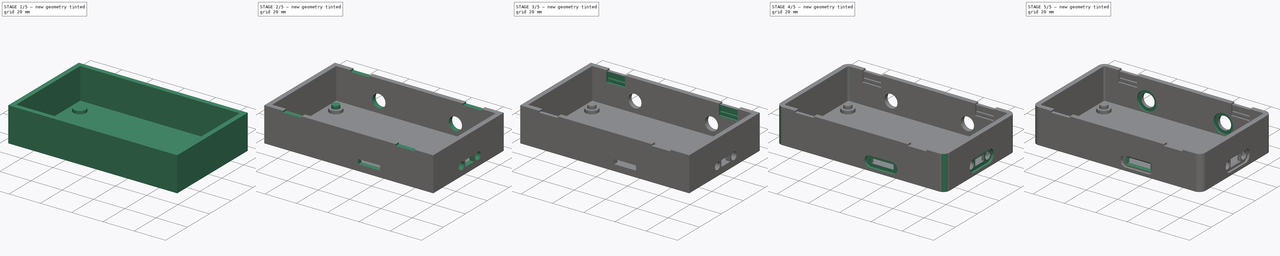
[diagram: build sequence overview — one tinted view per stage of 5, left to right]
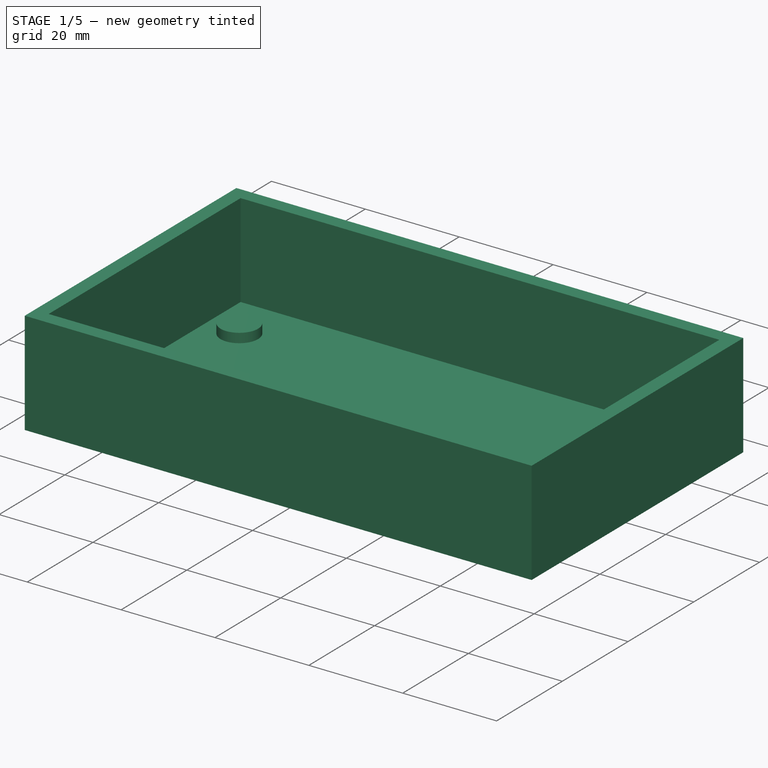
[diagram: stage 1 of 5 — iso view after this stage's code; geometry added in this stage tinted green]
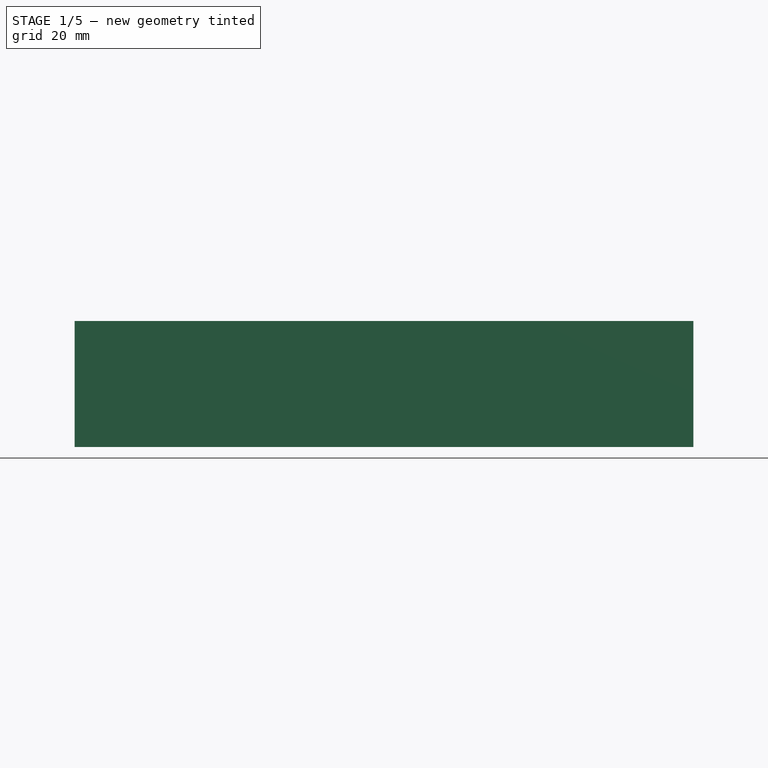
[diagram: stage 1 of 5 — front view after this stage's code; geometry added in this stage tinted green]
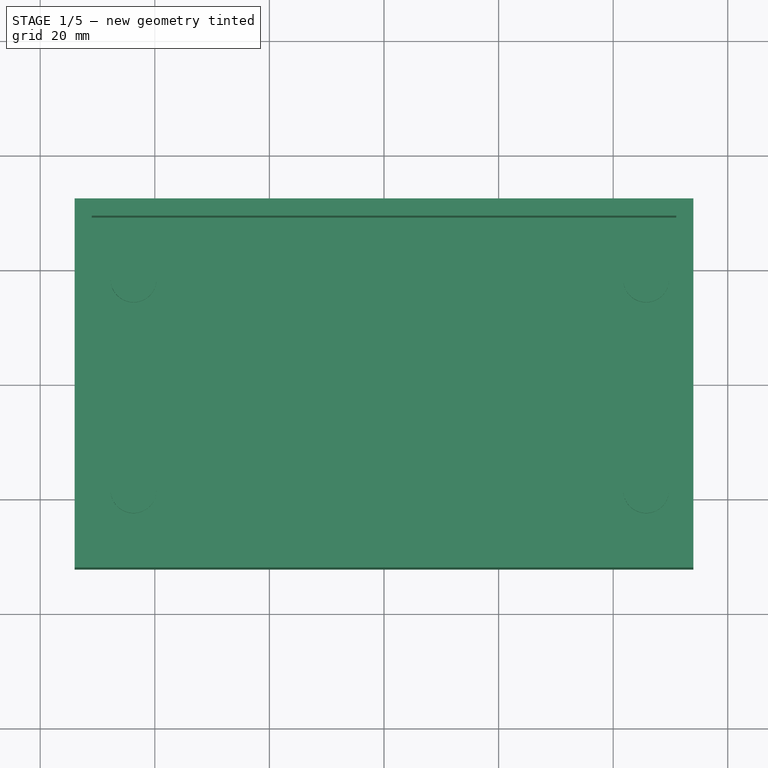
[diagram: stage 1 of 5 — top view after this stage's code; geometry added in this stage tinted green]
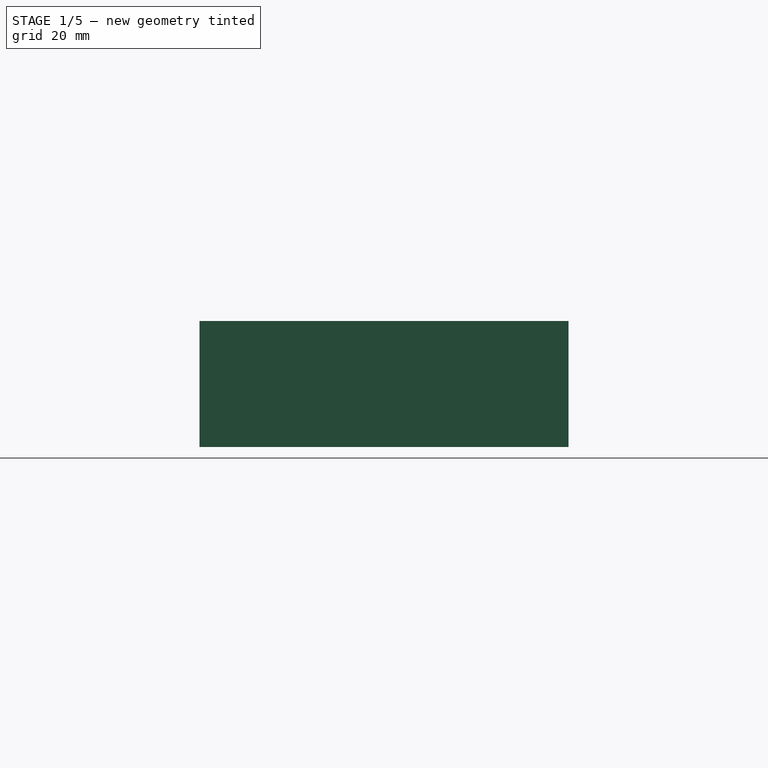
[diagram: stage 1 of 5 — right view after this stage's code; geometry added in this stage tinted green]
FCSTD DOCUMENT  (FreeCAD 0.17R13541 (Git))
Label: Case-Bottom
License: All rights reserved
LicenseURL: http://en.wikipedia.org/wiki/All_rights_reserved
objects: Sketcher::SketchObject×13, PartDesign::Pocket×10, PartDesign::Pad×3, PartDesign::Fillet×2, PartDesign::Chamfer×2, PartDesign::Body×1
note: 44 computed .brp shape members not serialized (recipe doc carries the construction recipe); baked Part::Feature solids carry a one-line shape summary decoded from their .brp

FEATURE [Sketcher::SketchObject] Sketch
  MapMode = 5
  Support = -> [XY_Plane]
  sketch-geometry (8):
    g0: LineSegment StartX=-54 StartY=32.2 StartZ=0 EndX=54 EndY=32.2 EndZ=0
    g1: LineSegment StartX=54 StartY=32.2 StartZ=0 EndX=54 EndY=-32.2 EndZ=0
    g2: LineSegment StartX=54 StartY=-32.2 StartZ=0 EndX=-54 EndY=-32.2 EndZ=0
    g3: LineSegment StartX=-54 StartY=-32.2 StartZ=0 EndX=-54 EndY=32.2 EndZ=0
    g4: LineSegment [constr] StartX=-51 StartY=29.2 StartZ=0 EndX=51 EndY=29.2 EndZ=0
    g5: LineSegment [constr] StartX=51 StartY=29.2 StartZ=0 EndX=51 EndY=-29.2 EndZ=0
    g6: LineSegment [constr] StartX=51 StartY=-29.2 StartZ=0 EndX=-51 EndY=-29.2 EndZ=0
    g7: LineSegment [constr] StartX=-51 StartY=-29.2 StartZ=0 EndX=-51 EndY=29.2 EndZ=0
  constraints (24):
    c: Coincident(g0,g1)
    c: Coincident(g1,g2)
    c: Coincident(g2,g3)
    c: Coincident(g3,g0)
    c: Horizontal(g0)
    c: Horizontal(g2)
    c: Vertical(g1)
    c: Vertical(g3)
    c: Symmetric(g0,g0,g-2)
    c: Symmetric(g0,g1,g-1)
    c: Coincident(g4,g5)
    c: Coincident(g5,g6)
    c: Coincident(g6,g7)
    c: Coincident(g7,g4)
    c: Horizontal(g4)
    c: Horizontal(g6)
    c: Vertical(g5)
    c: Vertical(g7)
    c: Symmetric(g4,g4,g-2)
    c: Symmetric(g4,g5,g-1)
    c: DistanceX(g0,g4) = 3
    c: DistanceY(g4,g0) = 3
    c: Distance(g4) = 102
    c: Distance(g7) = 58.4
FEATURE [PartDesign::Pad] Pad
  Length = 22
  Length2 = 100
  Profile = -> Sketch
  Type = 0
FEATURE [Sketcher::SketchObject] Sketch001
  ExternalGeometry = -> [Pad]
  MapMode = 5
  Placement = pos=(0,0,22) rot=(0,0,1;0rad)
  Support = -> [Pad]
  sketch-geometry (4):
    g0: LineSegment StartX=-51 StartY=29.2 StartZ=0 EndX=51 EndY=29.2 EndZ=0
    g1: LineSegment StartX=51 StartY=29.2 StartZ=0 EndX=51 EndY=-29.2 EndZ=0
    g2: LineSegment StartX=51 StartY=-29.2 StartZ=0 EndX=-51 EndY=-29.2 EndZ=0
    g3: LineSegment StartX=-51 StartY=-29.2 StartZ=0 EndX=-51 EndY=29.2 EndZ=0
  constraints (12):
    c: Coincident(g0,g1)
    c: Coincident(g1,g2)
    c: Coincident(g2,g3)
    c: Coincident(g3,g0)
    c: Horizontal(g0)
    c: Horizontal(g2)
    c: Vertical(g1)
    c: Vertical(g3)
    c: DistanceY(g0,g-3) = 3
    c: Symmetric(g0,g0,g-2)
    c: Symmetric(g0,g1,g-1)
    c: DistanceX(g-3,g0) = 3
FEATURE [PartDesign::Pocket] Pocket
  BaseFeature = -> Pad
  Length = 20
  Length2 = 100
  Profile = -> Sketch001
  Type = 0
FEATURE [Sketcher::SketchObject] Sketch002
  ExternalGeometry = -> [Pocket]
  MapMode = 5
  Placement = pos=(0,0,2) rot=(0,0,1;0rad)
  Support = -> [Pocket]
  sketch-geometry (8):
    g0: LineSegment [constr] StartX=-43.71 StartY=18.4 StartZ=0 EndX=45.75 EndY=18.4 EndZ=0
    g1: LineSegment [constr] StartX=45.75 StartY=18.4 StartZ=0 EndX=45.75 EndY=-18.4 EndZ=0
    g2: LineSegment [constr] StartX=45.75 StartY=-18.4 StartZ=0 EndX=-43.71 EndY=-18.4 EndZ=0
    g3: LineSegment [constr] StartX=-43.71 StartY=-18.4 StartZ=0 EndX=-43.71 EndY=18.4 EndZ=0
    g4: Circle CenterX=-43.71 CenterY=18.4 CenterZ=0 NormalX=0 NormalY=0 NormalZ=1 AngleXU=0 Radius=4
    g5: Circle CenterX=45.75 CenterY=18.4 CenterZ=0 NormalX=0 NormalY=0 NormalZ=1 AngleXU=0 Radius=4
    g6: Circle CenterX=45.75 CenterY=-18.4 CenterZ=0 NormalX=0 NormalY=0 NormalZ=1 AngleXU=0 Radius=4
    g7: Circle CenterX=-43.71 CenterY=-18.4 CenterZ=0 NormalX=0 NormalY=0 NormalZ=1 AngleXU=0 Radius=4
  constraints (20):
    c: Coincident(g0,g1)
    c: Coincident(g1,g2)
    c: Coincident(g2,g3)
    c: Coincident(g3,g0)
    c: Horizontal(g0)
    c: Horizontal(g2)
    c: Vertical(g1)
    c: Vertical(g3)
    c: DistanceX(g-3,g0) = 7.29
    c: DistanceY(g0,g-3) = 10.8
    c: Coincident(g5,g0)
    c: Coincident(g6,g1)
    c: Coincident(g7,g2)
    c: Equal(g4,g5)
    c: Equal(g5,g6)
    c: Equal(g6,g7)
    c: Radius(g4) = 4
    c: Coincident(g4,g0)
    c: DistanceX(g-3,g0) = 96.75
    c: DistanceY(g2,g-3) = 47.6
FEATURE [PartDesign::Pad] Pad001
  BaseFeature = -> Pocket
  Length = 2
  Length2 = 100
  Profile = -> Sketch002
  Type = 0
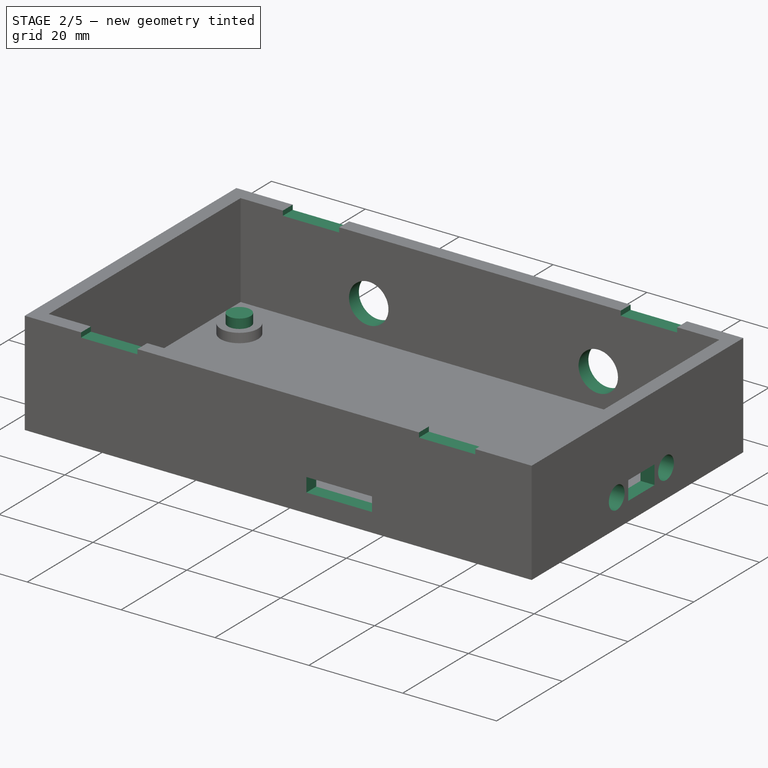
[diagram: stage 2 of 5 — iso view after this stage's code; geometry added in this stage tinted green]
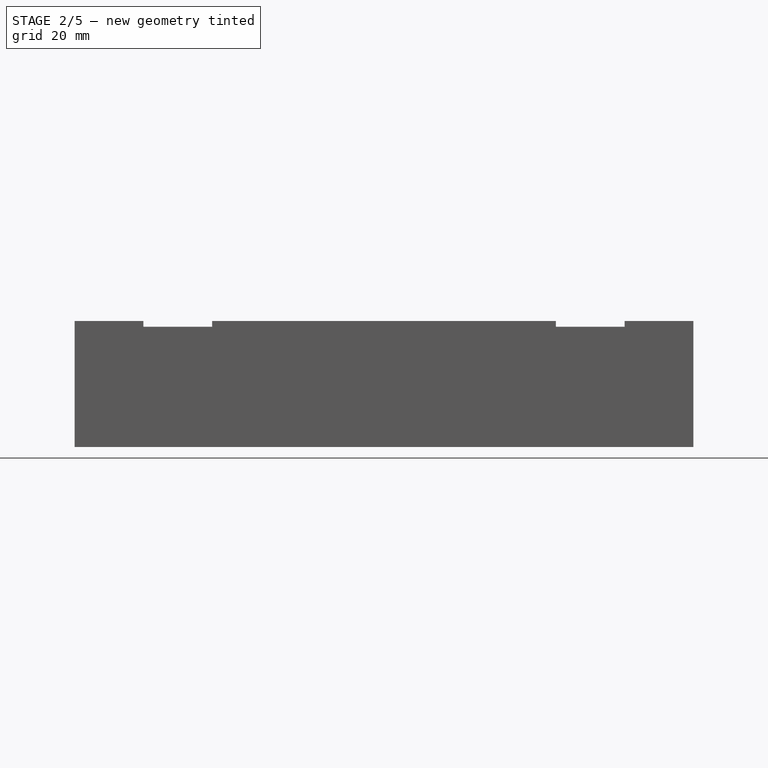
[diagram: stage 2 of 5 — front view after this stage's code; geometry added in this stage tinted green]
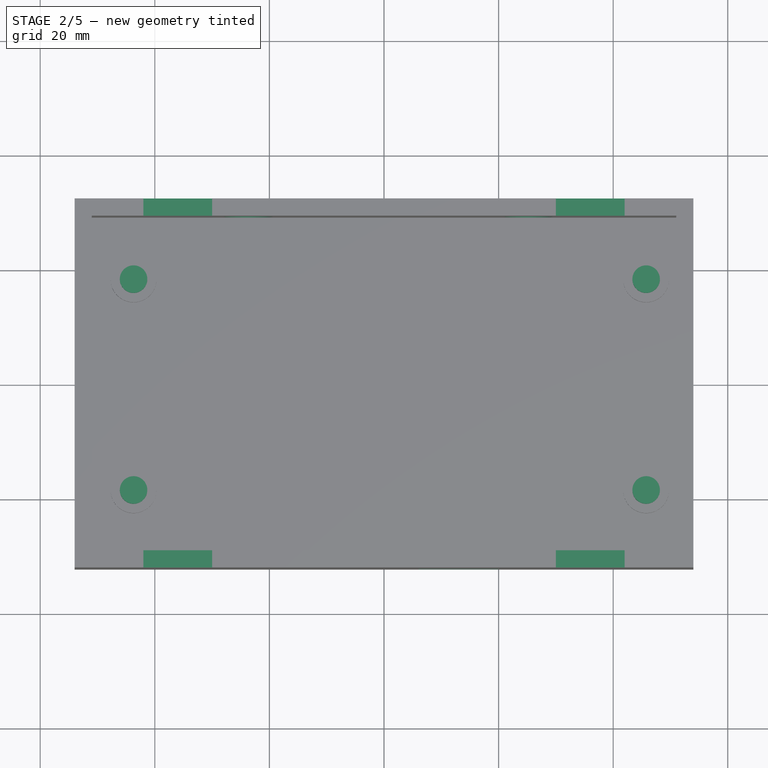
[diagram: stage 2 of 5 — top view after this stage's code; geometry added in this stage tinted green]
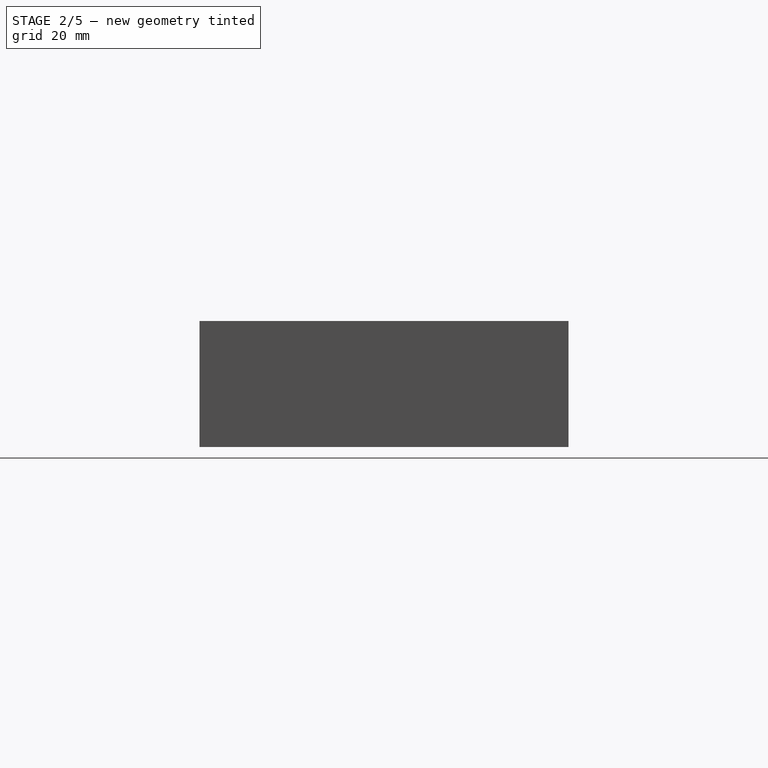
[diagram: stage 2 of 5 — right view after this stage's code; geometry added in this stage tinted green]
FEATURE [Sketcher::SketchObject] Sketch003
  ExternalGeometry = -> [Pad001]
  MapMode = 5
  Placement = pos=(0,0,2) rot=(0,0,1;0rad)
  Support = -> [Pad001]
  sketch-geometry (4):
    g0: Circle CenterX=-43.71 CenterY=18.4 CenterZ=0 NormalX=0 NormalY=0 NormalZ=1 AngleXU=0 Radius=2.4
    g1: Circle CenterX=45.75 CenterY=18.4 CenterZ=0 NormalX=0 NormalY=0 NormalZ=1 AngleXU=0 Radius=2.4
    g2: Circle CenterX=45.75 CenterY=-18.4 CenterZ=0 NormalX=0 NormalY=0 NormalZ=1 AngleXU=0 Radius=2.4
    g3: Circle CenterX=-43.71 CenterY=-18.4 CenterZ=0 NormalX=0 NormalY=0 NormalZ=1 AngleXU=0 Radius=2.4
  constraints (8):
    c: Coincident(g0,g-6)
    c: Coincident(g1,g-7)
    c: Coincident(g3,g-8)
    c: Coincident(g2,g-9)
    c: Equal(g1,g0)
    c: Equal(g0,g3)
    c: Equal(g3,g2)
    c: Radius(g0) = 2.4
FEATURE [PartDesign::Pad] Pad002
  BaseFeature = -> Pad001
  Length = 4
  Length2 = 100
  Profile = -> Sketch003
  Type = 0
FEATURE [Sketcher::SketchObject] Sketch004
  ExternalGeometry = -> [Pad002]
  MapMode = 5
  Placement = pos=(0,32.2,0) rot=(0,0.707107,0.707107;3.14159rad)
  Support = -> [Pad002]
  sketch-geometry (10):
    g0: LineSegment StartX=-42 StartY=21 StartZ=0 EndX=-30 EndY=21 EndZ=0
    g1: LineSegment StartX=-30 StartY=21 StartZ=0 EndX=-30 EndY=22 EndZ=0
    g2: LineSegment StartX=-30 StartY=22 StartZ=0 EndX=-42 EndY=22 EndZ=0
    g3: LineSegment StartX=-42 StartY=22 StartZ=0 EndX=-42 EndY=21 EndZ=0
    g4: LineSegment StartX=30 StartY=22 StartZ=0 EndX=42 EndY=22 EndZ=0
    g5: LineSegment StartX=42 StartY=22 StartZ=0 EndX=42 EndY=21 EndZ=0
    g6: LineSegment StartX=42 StartY=21 StartZ=0 EndX=30 EndY=21 EndZ=0
    g7: LineSegment StartX=30 StartY=21 StartZ=0 EndX=30 EndY=22 EndZ=0
    g8: Circle CenterX=-25.2 CenterY=9 CenterZ=0 NormalX=0 NormalY=0 NormalZ=1 AngleXU=0 Radius=4.2
    g9: Circle CenterX=23.702 CenterY=9 CenterZ=0 NormalX=0 NormalY=0 NormalZ=1 AngleXU=0 Radius=4.2
  constraints (30):
    c: Coincident(g0,g1)
    c: Coincident(g1,g2)
    c: Coincident(g2,g3)
    c: Coincident(g3,g0)
    c: Horizontal(g0)
    c: Horizontal(g2)
    c: Vertical(g1)
    c: Vertical(g3)
    c: Coincident(g4,g5)
    c: Coincident(g5,g6)
    c: Coincident(g6,g7)
    c: Coincident(g7,g4)
    c: Horizontal(g4)
    c: Horizontal(g6)
    c: Vertical(g5)
    c: Vertical(g7)
    c: PointOnObject(g4,g-3)
    c: Equal(g0,g4)
    c: Equal(g1,g5)
    c: Distance(g0) = 12
    c: Distance(g5) = 1
    c: DistanceX(g-3,g0) = 12
    c: DistanceX(g-3,g4) = 84
    c: Equal(g8,g9)
    c: Radius(g8) = 4.2
    c: DistanceX(g-3,g8) = 28.8
    c: DistanceX(g-3,g9) = 77.702
    c: Horizontal(g8,g9)
    c: DistanceY(g-4,g8) = 7
    c: Horizontal(g1,g4)
FEATURE [PartDesign::Pocket] Pocket001
  BaseFeature = -> Pad002
  Length = 3
  Length2 = 100
  Profile = -> Sketch004
  Type = 0
FEATURE [Sketcher::SketchObject] Sketch005
  ExternalGeometry = -> [Pocket001]
  MapMode = 5
  Placement = pos=(0,-32.2,0) rot=(1,0,0;1.5708rad)
  Support = -> [Pocket001]
  sketch-geometry (12):
    g0: LineSegment StartX=-42 StartY=22 StartZ=0 EndX=-30 EndY=22 EndZ=0
    g1: LineSegment StartX=-30 StartY=22 StartZ=0 EndX=-30 EndY=21 EndZ=0
    g2: LineSegment StartX=-30 StartY=21 StartZ=0 EndX=-42 EndY=21 EndZ=0
    g3: LineSegment StartX=-42 StartY=21 StartZ=0 EndX=-42 EndY=22 EndZ=0
    g4: LineSegment StartX=30 StartY=22 StartZ=0 EndX=42 EndY=22 EndZ=0
    g5: LineSegment StartX=42 StartY=22 StartZ=0 EndX=42 EndY=21 EndZ=0
    g6: LineSegment StartX=42 StartY=21 StartZ=0 EndX=30 EndY=21 EndZ=0
    g7: LineSegment StartX=30 StartY=21 StartZ=0 EndX=30 EndY=22 EndZ=0
    g8: LineSegment StartX=6 StartY=7 StartZ=0 EndX=20 EndY=7 EndZ=0
    g9: LineSegment StartX=20 StartY=7 StartZ=0 EndX=20 EndY=4 EndZ=0
    g10: LineSegment StartX=20 StartY=4 StartZ=0 EndX=6 EndY=4 EndZ=0
    g11: LineSegment StartX=6 StartY=4 StartZ=0 EndX=6 EndY=7 EndZ=0
  constraints (34):
    c: Coincident(g3,g2)
    c: Coincident(g1,g2)
    c: Coincident(g1,g0)
    c: Coincident(g3,g0)
    c: Horizontal(g0)
    c: Horizontal(g2)
    c: Vertical(g3)
    c: Vertical(g1)
    c: Coincident(g7,g4)
    c: Coincident(g4,g5)
    c: Coincident(g6,g5)
    c: Coincident(g6,g7)
    c: Horizontal(g6)
    c: Horizontal(g4)
    c: Vertical(g7)
    c: Vertical(g5)
    c: Equal(g1,g5)
    c: Equal(g0,g4)
    c: Coincident(g11,g10)
    c: Coincident(g11,g8)
    c: Coincident(g8,g9)
    c: Coincident(g9,g10)
    c: Horizontal(g8)
    c: Horizontal(g10)
    c: Vertical(g11)
    c: Vertical(g9)
    c: Coincident(g1,g-5)
    c: Coincident(g5,g-6)
    c: DistanceY(g5,g5) = 1
    c: Distance(g10) = 14
    c: Distance(g11) = 3
    c: DistanceX(g9,g-4) = 31
    c: DistanceY(g-4,g9) = 2
    c: DistanceX(g4,g4) = 12
FEATURE [PartDesign::Pocket] Pocket002
  BaseFeature = -> Pocket001
  Length = 3
  Length2 = 100
  Profile = -> Sketch005
  Type = 0
FEATURE [Sketcher::SketchObject] Sketch006
  ExternalGeometry = -> [Pocket002]
  MapMode = 5
  Placement = pos=(54,0,0) rot=(0.57735,0.57735,0.57735;2.0944rad)
  Support = -> [Pocket002]
  sketch-geometry (6):
    g0: LineSegment StartX=-2.8 StartY=8 StartZ=0 EndX=5.2 EndY=8 EndZ=0
    g1: LineSegment StartX=5.2 StartY=8 StartZ=0 EndX=5.2 EndY=4 EndZ=0
    g2: LineSegment StartX=5.2 StartY=4 StartZ=0 EndX=-2.8 EndY=4 EndZ=0
    g3: LineSegment StartX=-2.8 StartY=4 StartZ=0 EndX=-2.8 EndY=8 EndZ=0
    g4: Circle CenterX=-6.3 CenterY=6 CenterZ=0 NormalX=0 NormalY=0 NormalZ=1 AngleXU=0 Radius=2.4
    g5: Circle CenterX=8.7 CenterY=6 CenterZ=0 NormalX=0 NormalY=0 NormalZ=1 AngleXU=0 Radius=2.4
  constraints (18):
    c: Coincident(g0,g1)
    c: Coincident(g1,g2)
    c: Coincident(g2,g3)
    c: Coincident(g3,g0)
    c: Horizontal(g0)
    c: Horizontal(g2)
    c: Vertical(g1)
    c: Vertical(g3)
    c: Equal(g4,g5)
    c: Radius(g4) = 2.4
    c: Distance(g0) = 8
    c: Distance(g1) = 4
    c: Horizontal(g5,g4)
    c: DistanceX(g5,g-4) = 20.5
    c: DistanceX(g4,g-4) = 35.5
    c: DistanceX(g1,g-4) = 24
    c: DistanceY(g-4,g1) = 2
    c: DistanceY(g-4,g5) = 4
FEATURE [PartDesign::Pocket] Pocket003
  BaseFeature = -> Pocket002
  Length = 3
  Length2 = 100
  Profile = -> Sketch006
  Type = 0
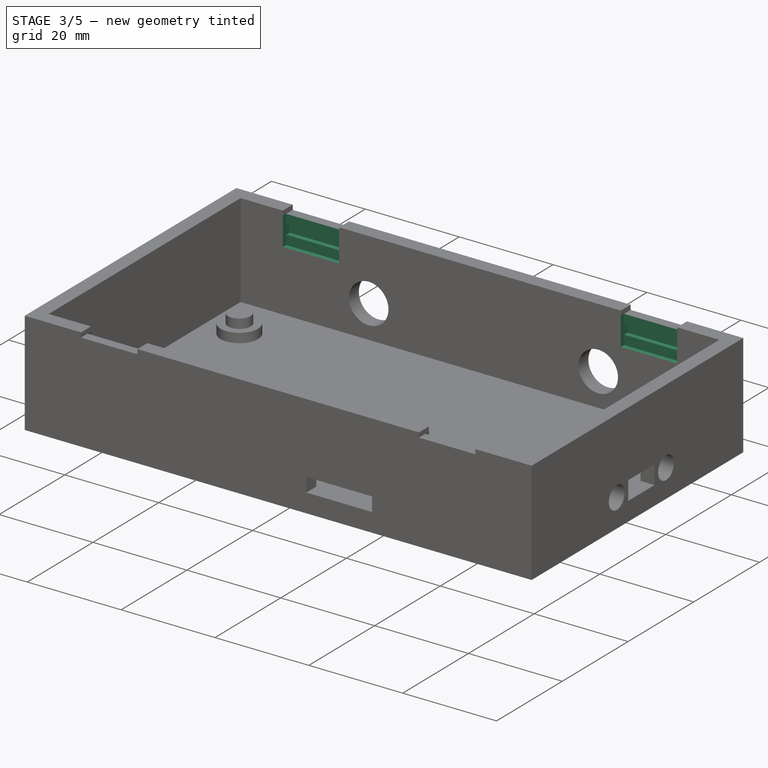
[diagram: stage 3 of 5 — iso view after this stage's code; geometry added in this stage tinted green]
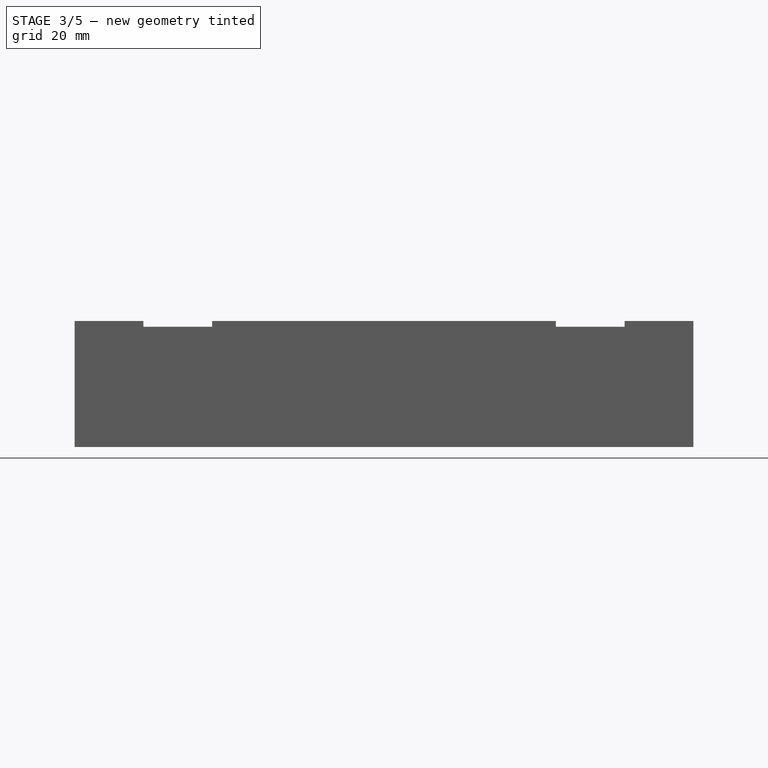
[diagram: stage 3 of 5 — front view after this stage's code; geometry added in this stage tinted green]
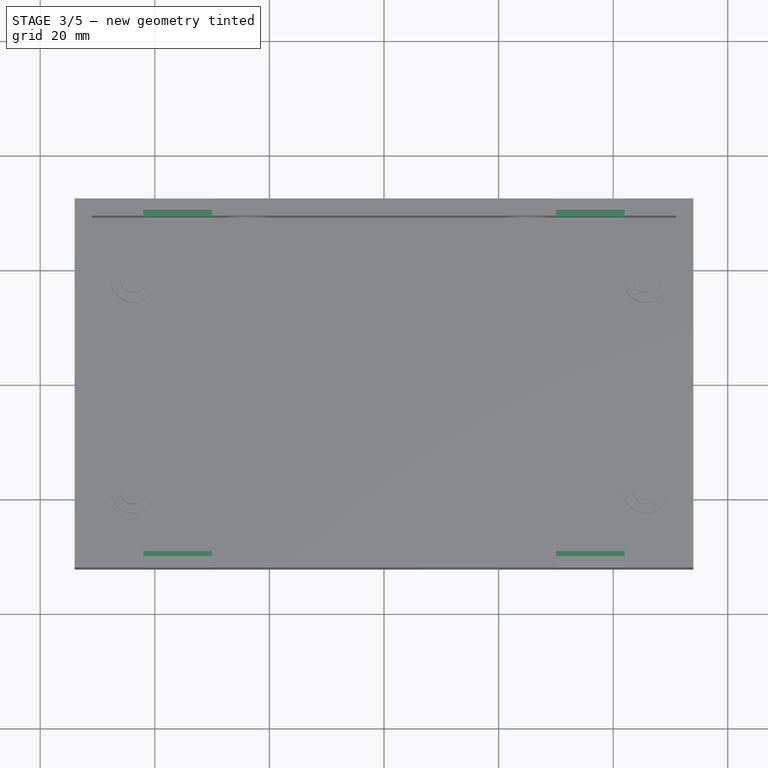
[diagram: stage 3 of 5 — top view after this stage's code; geometry added in this stage tinted green]
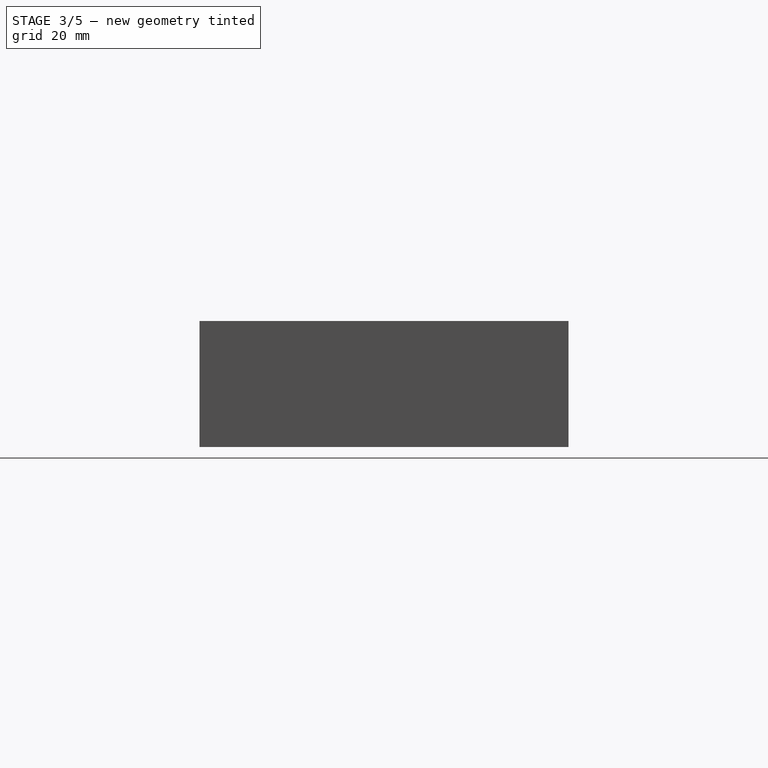
[diagram: stage 3 of 5 — right view after this stage's code; geometry added in this stage tinted green]
FEATURE [Sketcher::SketchObject] Sketch007
  ExternalGeometry = -> [Pocket003]
  MapMode = 5
  Placement = pos=(0,29.2,0) rot=(1,0,0;1.5708rad)
  Support = -> [Pocket003]
  sketch-geometry (8):
    g0: LineSegment StartX=-42 StartY=19 StartZ=0 EndX=-30 EndY=19 EndZ=0
    g1: LineSegment StartX=-30 StartY=19 StartZ=0 EndX=-30 EndY=17 EndZ=0
    g2: LineSegment StartX=-30 StartY=17 StartZ=0 EndX=-42 EndY=17 EndZ=0
    g3: LineSegment StartX=-42 StartY=17 StartZ=0 EndX=-42 EndY=19 EndZ=0
    g4: LineSegment StartX=30 StartY=19 StartZ=0 EndX=42 EndY=19 EndZ=0
    g5: LineSegment StartX=42 StartY=19 StartZ=0 EndX=42 EndY=17 EndZ=0
    g6: LineSegment StartX=42 StartY=17 StartZ=0 EndX=30 EndY=17 EndZ=0
    g7: LineSegment StartX=30 StartY=17 StartZ=0 EndX=30 EndY=19 EndZ=0
  constraints (24):
    c: Coincident(g0,g1)
    c: Coincident(g1,g2)
    c: Coincident(g2,g3)
    c: Coincident(g3,g0)
    c: Horizontal(g0)
    c: Horizontal(g2)
    c: Vertical(g1)
    c: Vertical(g3)
    c: Coincident(g4,g5)
    c: Coincident(g5,g6)
    c: Coincident(g6,g7)
    c: Coincident(g7,g4)
    c: Horizontal(g4)
    c: Horizontal(g6)
    c: Vertical(g5)
    c: Vertical(g7)
    c: Vertical(g-5,g0)
    c: Vertical(g-5,g0)
    c: Vertical(g4,g-4)
    c: Vertical(g-4,g4)
    c: Equal(g1,g5)
    c: Horizontal(g0,g4)
    c: DistanceY(g0,g-5) = 2
    c: DistanceY(g2,g-5) = 4
FEATURE [PartDesign::Pocket] Pocket004
  BaseFeature = -> Pocket003
  Length = 2
  Length2 = 100
  Profile = -> Sketch007
  Type = 0
FEATURE [Sketcher::SketchObject] Sketch008
  ExternalGeometry = -> [Pocket004]
  MapMode = 5
  Placement = pos=(0,-29.2,0) rot=(0,0.707107,0.707107;3.14159rad)
  Support = -> [Pocket004]
  sketch-geometry (8):
    g0: LineSegment StartX=-42 StartY=19 StartZ=0 EndX=-30 EndY=19 EndZ=0
    g1: LineSegment StartX=-30 StartY=19 StartZ=0 EndX=-30 EndY=17 EndZ=0
    g2: LineSegment StartX=-30 StartY=17 StartZ=0 EndX=-42 EndY=17 EndZ=0
    g3: LineSegment StartX=-42 StartY=17 StartZ=0 EndX=-42 EndY=19 EndZ=0
    g4: LineSegment StartX=30 StartY=19 StartZ=0 EndX=42 EndY=19 EndZ=0
    g5: LineSegment StartX=42 StartY=19 StartZ=0 EndX=42 EndY=17 EndZ=0
    g6: LineSegment StartX=42 StartY=17 StartZ=0 EndX=30 EndY=17 EndZ=0
    g7: LineSegment StartX=30 StartY=17 StartZ=0 EndX=30 EndY=19 EndZ=0
  constraints (24):
    c: Coincident(g0,g1)
    c: Coincident(g1,g2)
    c: Coincident(g2,g3)
    c: Coincident(g3,g0)
    c: Horizontal(g0)
    c: Horizontal(g2)
    c: Vertical(g1)
    c: Vertical(g3)
    c: Coincident(g4,g5)
    c: Coincident(g5,g6)
    c: Coincident(g6,g7)
    c: Coincident(g7,g4)
    c: Horizontal(g4)
    c: Horizontal(g6)
    c: Vertical(g5)
    c: Vertical(g7)
    c: Vertical(g-3,g0)
    c: Vertical(g-3,g0)
    c: Vertical(g-4,g4)
    c: Vertical(g-4,g4)
    c: Equal(g3,g7)
    c: DistanceY(g3,g3) = 2
    c: DistanceY(g0,g-3) = 2
    c: Horizontal(g0,g4)
FEATURE [PartDesign::Pocket] Pocket005
  BaseFeature = -> Pocket004
  Length = 2
  Length2 = 100
  Profile = -> Sketch008
  Type = 0
FEATURE [Sketcher::SketchObject] Sketch009
  ExternalGeometry = -> [Pocket005]
  MapMode = 5
  Placement = pos=(0,0,22) rot=(0,0,1;0rad)
  Support = -> [Pocket005]
  sketch-geometry (16):
    g0: LineSegment StartX=-42 StartY=30.2 StartZ=0 EndX=-30 EndY=30.2 EndZ=0
    g1: LineSegment StartX=-30 StartY=30.2 StartZ=0 EndX=-30 EndY=29.2 EndZ=0
    g2: LineSegment StartX=-30 StartY=29.2 StartZ=0 EndX=-42 EndY=29.2 EndZ=0
    g3: LineSegment StartX=-42 StartY=29.2 StartZ=0 EndX=-42 EndY=30.2 EndZ=0
    g4: LineSegment StartX=30 StartY=30.2 StartZ=0 EndX=42 EndY=30.2 EndZ=0
    g5: LineSegment StartX=42 StartY=30.2 StartZ=0 EndX=42 EndY=29.2 EndZ=0
    g6: LineSegment StartX=42 StartY=29.2 StartZ=0 EndX=30 EndY=29.2 EndZ=0
    g7: LineSegment StartX=30 StartY=29.2 StartZ=0 EndX=30 EndY=30.2 EndZ=0
    g8: LineSegment StartX=30 StartY=-29.2 StartZ=0 EndX=42 EndY=-29.2 EndZ=0
    g9: LineSegment StartX=42 StartY=-29.2 StartZ=0 EndX=42 EndY=-30.2 EndZ=0
    g10: LineSegment StartX=42 StartY=-30.2 StartZ=0 EndX=30 EndY=-30.2 EndZ=0
    g11: LineSegment StartX=30 StartY=-30.2 StartZ=0 EndX=30 EndY=-29.2 EndZ=0
    g12: LineSegment StartX=-42 StartY=-29.2 StartZ=0 EndX=-30 EndY=-29.2 EndZ=0
    g13: LineSegment StartX=-30 StartY=-29.2 StartZ=0 EndX=-30 EndY=-30.2 EndZ=0
    g14: LineSegment StartX=-30 StartY=-30.2 StartZ=0 EndX=-42 EndY=-30.2 EndZ=0
    g15: LineSegment StartX=-42 StartY=-30.2 StartZ=0 EndX=-42 EndY=-29.2 EndZ=0
  constraints (48):
    c: Coincident(g0,g1)
    c: Coincident(g1,g2)
    c: Coincident(g2,g3)
    c: Coincident(g3,g0)
    c: Horizontal(g0)
    c: Horizontal(g2)
    c: Vertical(g1)
    c: Vertical(g3)
    c: Coincident(g4,g5)
    c: Coincident(g5,g6)
    c: Coincident(g6,g7)
    c: Coincident(g7,g4)
    c: Horizontal(g4)
    c: Horizontal(g6)
    c: Vertical(g5)
    c: Vertical(g7)
    c: Coincident(g8,g9)
    c: Coincident(g9,g10)
    c: Coincident(g10,g11)
    c: Coincident(g11,g8)
    c: Horizontal(g8)
    c: Horizontal(g10)
    c: Vertical(g9)
    c: Vertical(g11)
    c: Coincident(g12,g13)
    c: Coincident(g13,g14)
    c: Coincident(g14,g15)
    c: Coincident(g15,g12)
    c: Horizontal(g12)
    c: Horizontal(g14)
    c: Vertical(g13)
    c: Vertical(g15)
    c: Vertical(g0,g-3)
    c: Vertical(g-3,g0)
    c: Vertical(g4,g-4)
    c: Vertical(g4,g-4)
    c: Vertical(g-5,g10)
    c: Vertical(g-5,g9)
    c: Vertical(g-6,g14)
    c: Vertical(g-6,g13)
    c: Horizontal(g0,g4)
    c: Horizontal(g12,g8)
    c: Equal(g3,g15)
    c: Equal(g15,g11)
    c: Equal(g11,g7)
    c: DistanceY(g1,g1) = 1
    c: DistanceY(g0,g-3) = 2
    c: DistanceY(g-6,g14) = 2
FEATURE [PartDesign::Pocket] Pocket006
  BaseFeature = -> Pocket005
  Length = 7
  Length2 = 100
  Profile = -> Sketch009
  Type = 0
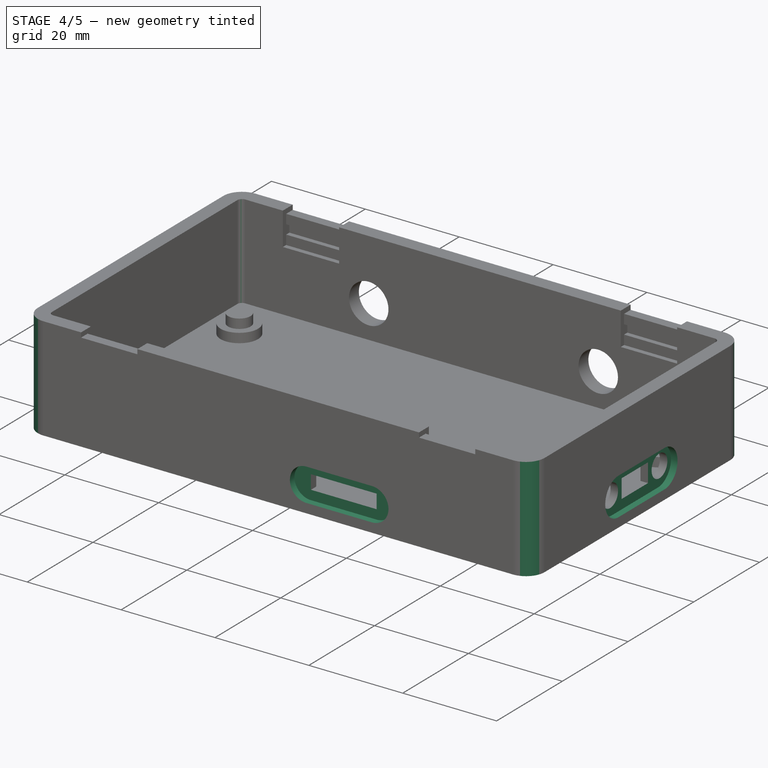
[diagram: stage 4 of 5 — iso view after this stage's code; geometry added in this stage tinted green]
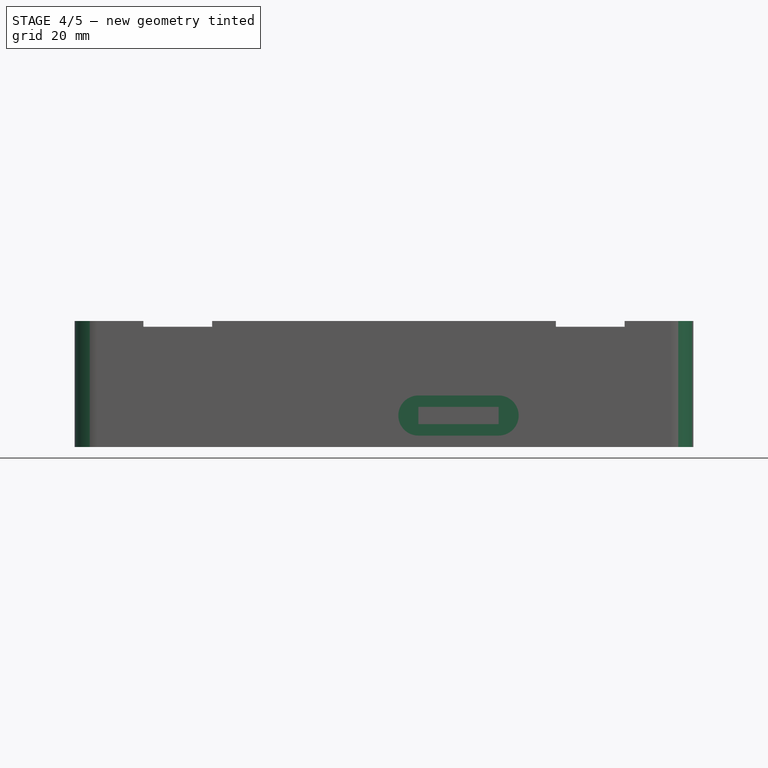
[diagram: stage 4 of 5 — front view after this stage's code; geometry added in this stage tinted green]
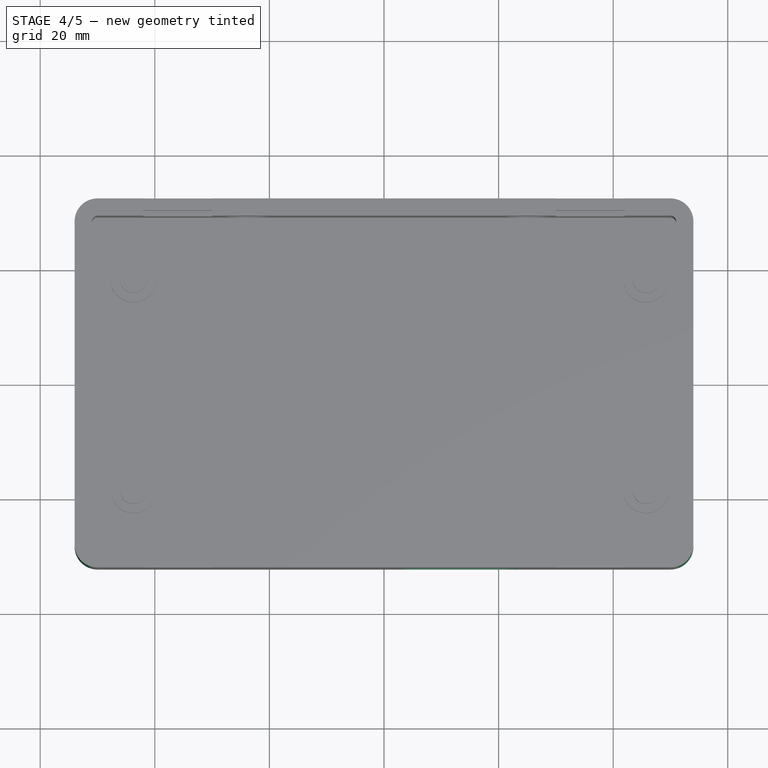
[diagram: stage 4 of 5 — top view after this stage's code; geometry added in this stage tinted green]
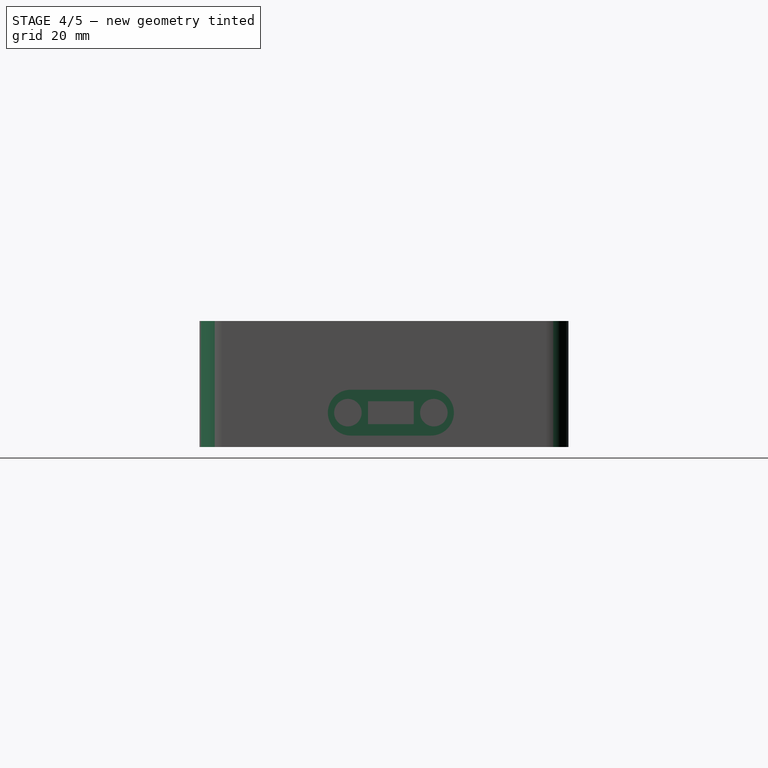
[diagram: stage 4 of 5 — right view after this stage's code; geometry added in this stage tinted green]
FEATURE [Sketcher::SketchObject] Sketch010
  ExternalGeometry = -> [Pocket006]
  MapMode = 5
  Placement = pos=(0,-32.2,0) rot=(1,0,0;1.5708rad)
  Support = -> [Pocket006]
  sketch-geometry (4):
    g0: ArcOfCircle CenterX=6 CenterY=5.5 CenterZ=0 NormalX=0 NormalY=0 NormalZ=1 AngleXU=0 Radius=3.5 StartAngle=1.5708 EndAngle=4.71239
    g1: ArcOfCircle CenterX=20 CenterY=5.5 CenterZ=0 NormalX=0 NormalY=0 NormalZ=1 AngleXU=0 Radius=3.5 StartAngle=4.71239 EndAngle=7.85398
    g2: LineSegment StartX=6 StartY=2 StartZ=0 EndX=20 EndY=2 EndZ=0
    g3: LineSegment StartX=6 StartY=9 StartZ=0 EndX=20 EndY=9 EndZ=0
  constraints (10):
    c: Tangent(g0,g3) = 1.5708
    c: Tangent(g0,g2) = -1.5708
    c: Tangent(g2,g1) = -1.5708
    c: Tangent(g3,g1) = 1.5708
    c: Horizontal(g2)
    c: Equal(g0,g1)
    c: Vertical(g0,g-3)
    c: Vertical(g1,g-3)
    c: DistanceY(g1,g-4) = 2
    c: DistanceY(g-3,g1) = 2
FEATURE [PartDesign::Pocket] Pocket007
  BaseFeature = -> Pocket006
  Length = 1.4
  Length2 = 100
  Profile = -> Sketch010
  Type = 0
FEATURE [Sketcher::SketchObject] Sketch011
  ExternalGeometry = -> [Pocket007]
  MapMode = 5
  Placement = pos=(54,0,0) rot=(0.57735,0.57735,0.57735;2.0944rad)
  Support = -> [Pocket007]
  sketch-geometry (4):
    g0: ArcOfCircle CenterX=-5.8 CenterY=6 CenterZ=0 NormalX=0 NormalY=0 NormalZ=1 AngleXU=0 Radius=4 StartAngle=1.5708 EndAngle=4.71239
    g1: ArcOfCircle CenterX=8.2 CenterY=6 CenterZ=0 NormalX=0 NormalY=0 NormalZ=1 AngleXU=0 Radius=4 StartAngle=4.71239 EndAngle=7.85398
    g2: LineSegment StartX=-5.8 StartY=2 StartZ=0 EndX=8.2 EndY=2 EndZ=0
    g3: LineSegment StartX=-5.8 StartY=10 StartZ=0 EndX=8.2 EndY=10 EndZ=0
  constraints (10):
    c: Tangent(g0,g3) = 1.5708
    c: Tangent(g0,g2) = -1.5708
    c: Tangent(g2,g1) = -1.5708
    c: Tangent(g3,g1) = 1.5708
    c: Horizontal(g2)
    c: Equal(g0,g1)
    c: DistanceX(g-4,g1) = 3
    c: DistanceY(g1,g-4) = 2
    c: DistanceX(g0,g-3) = 3
    c: DistanceY(g-3,g0) = 2
FEATURE [PartDesign::Pocket] Pocket008
  BaseFeature = -> Pocket007
  Length = 1.4
  Length2 = 100
  Profile = -> Sketch011
  Type = 0
FEATURE [PartDesign::Fillet] Fillet
  Base = -> Pocket008 [Edge19,Edge2,Edge12,Edge56]
  BaseFeature = -> Pocket008
  Radius = 4
FEATURE [PartDesign::Fillet] Fillet001
  Base = -> Fillet [Edge114,Edge106,Edge108,Edge133]
  BaseFeature = -> Fillet
  Radius = 1
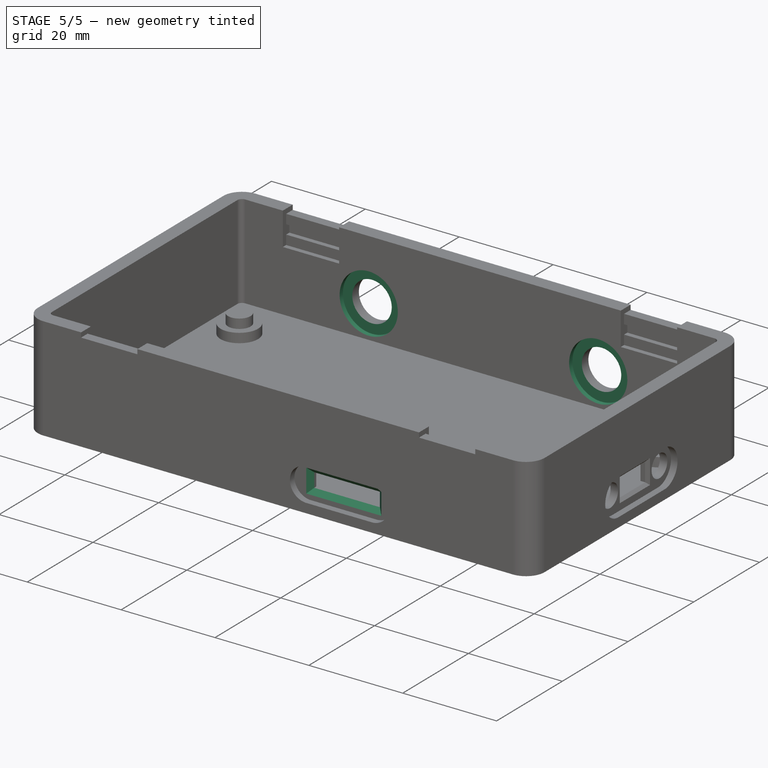
[diagram: stage 5 of 5 — iso view after this stage's code; geometry added in this stage tinted green]
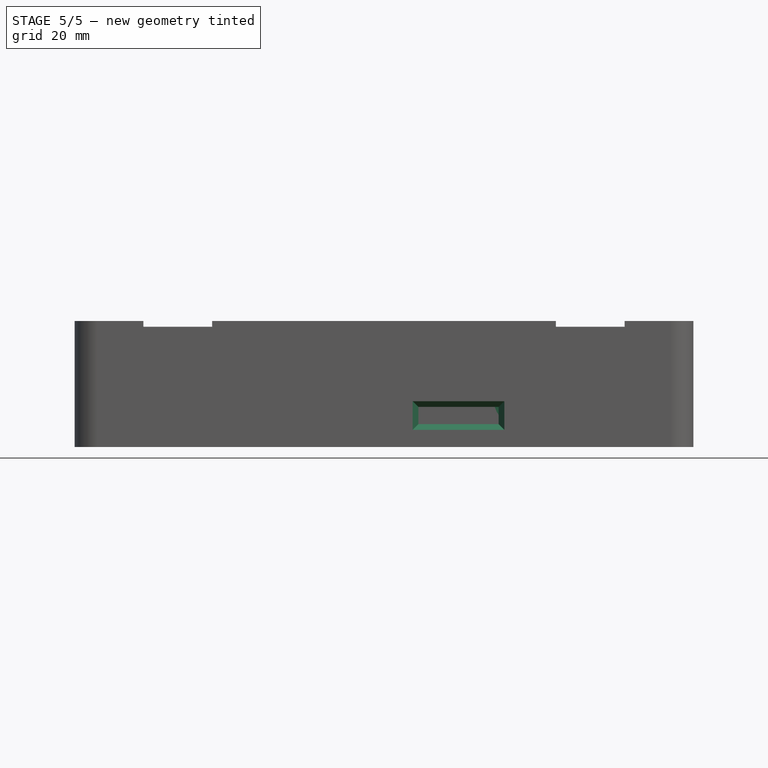
[diagram: stage 5 of 5 — front view after this stage's code; geometry added in this stage tinted green]
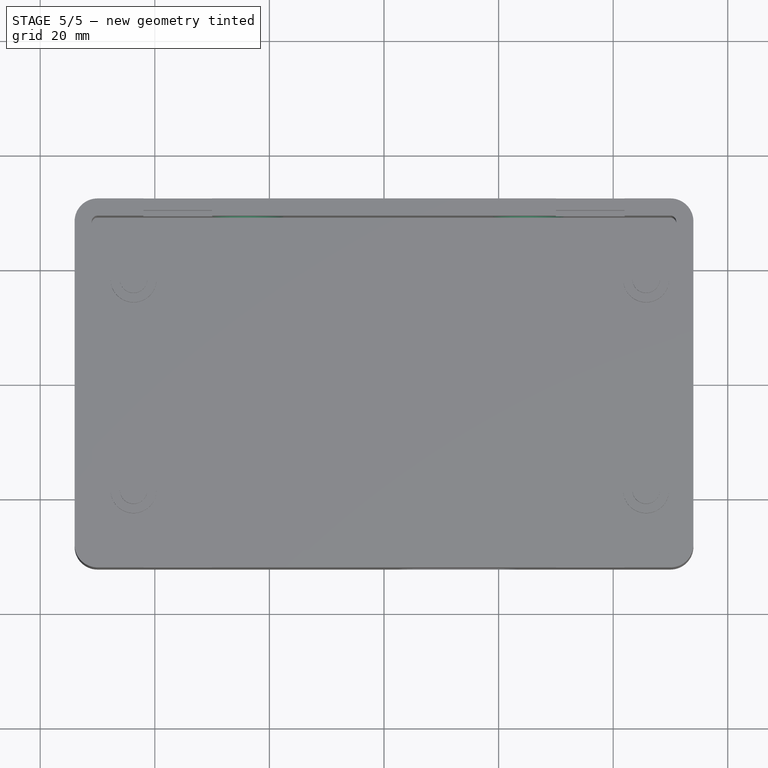
[diagram: stage 5 of 5 — top view after this stage's code; geometry added in this stage tinted green]
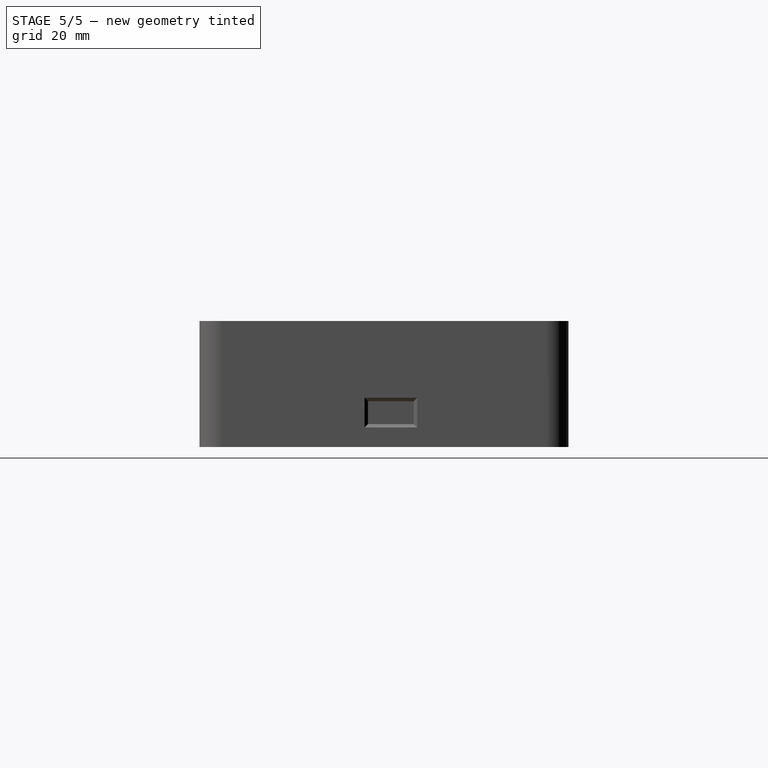
[diagram: stage 5 of 5 — right view after this stage's code; geometry added in this stage tinted green]
FEATURE [PartDesign::Chamfer] Chamfer
  Base = -> Fillet001 [Edge287,Edge294,Edge290,Edge292]
  BaseFeature = -> Fillet001
  Size = 0.6
FEATURE [PartDesign::Chamfer] Chamfer001
  Base = -> Chamfer [Edge212,Edge215,Edge219,Edge217]
  BaseFeature = -> Chamfer
  Size = 1
FEATURE [Sketcher::SketchObject] Sketch012
  ExternalGeometry = -> [Chamfer001]
  MapMode = 5
  Placement = pos=(0,29.2,0) rot=(1,0,0;1.5708rad)
  Support = -> [Chamfer001]
  sketch-geometry (2):
    g0: Circle CenterX=-23.702 CenterY=9 CenterZ=0 NormalX=0 NormalY=0 NormalZ=1 AngleXU=0 Radius=6.2
    g1: Circle CenterX=25.2 CenterY=9 CenterZ=0 NormalX=0 NormalY=0 NormalZ=1 AngleXU=0 Radius=6.2
  constraints (4):
    c: Coincident(g0,g-3)
    c: Coincident(g1,g-4)
    c: Radius(g0) = 6.2
    c: Equal(g0,g1)
FEATURE [PartDesign::Pocket] Pocket009
  BaseFeature = -> Chamfer001
  Length = 1
  Length2 = 100
  Profile = -> Sketch012
  Type = 0
FEATURE [PartDesign::Body] Body
  Group = -> [Sketch,Pad,Sketch001,Pocket,Sketch002,Pad001,Sketch003,Pad002,Sketch004,Pocket001,Sketch005,Pocket002,Sketch006,Pocket003,Sketch007,Pocket004,Sketch008,Pocket005,Sketch009,Pocket006,Sketch010,Pocket007,Sketch011,Pocket008,Fillet,Fillet001,Chamfer,Chamfer001,Sketch012,Pocket009]
  Origin = -> Origin
  Tip = -> Pocket009
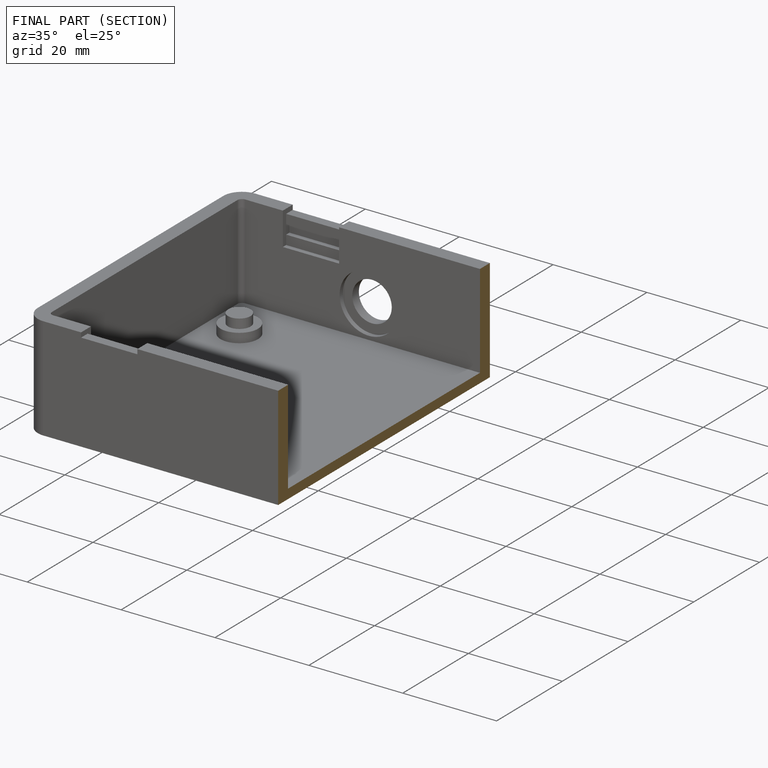
[diagram: finished part — half-section view (interior)]
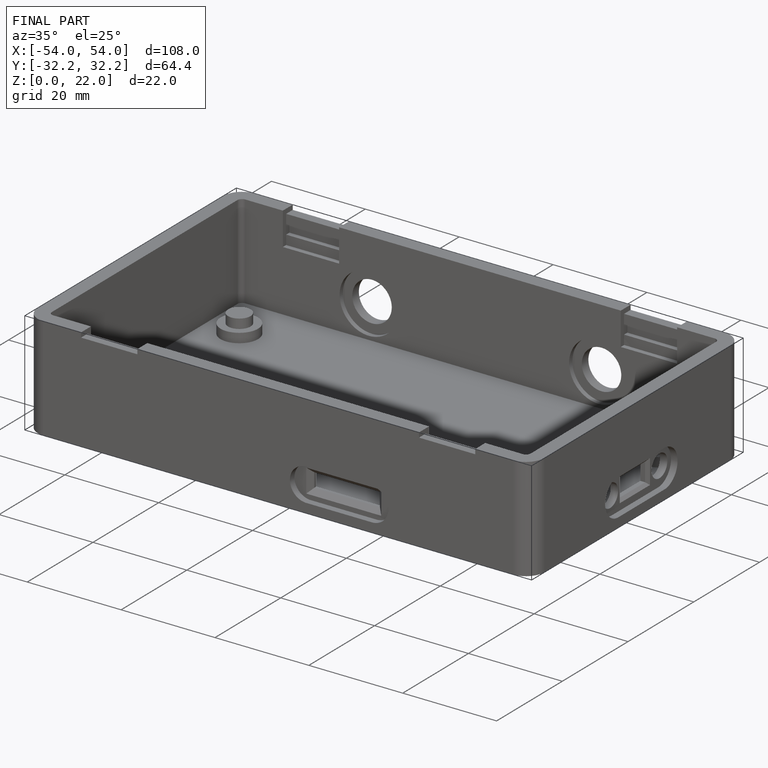
[diagram: finished part — iso view with bounding-box wireframe]
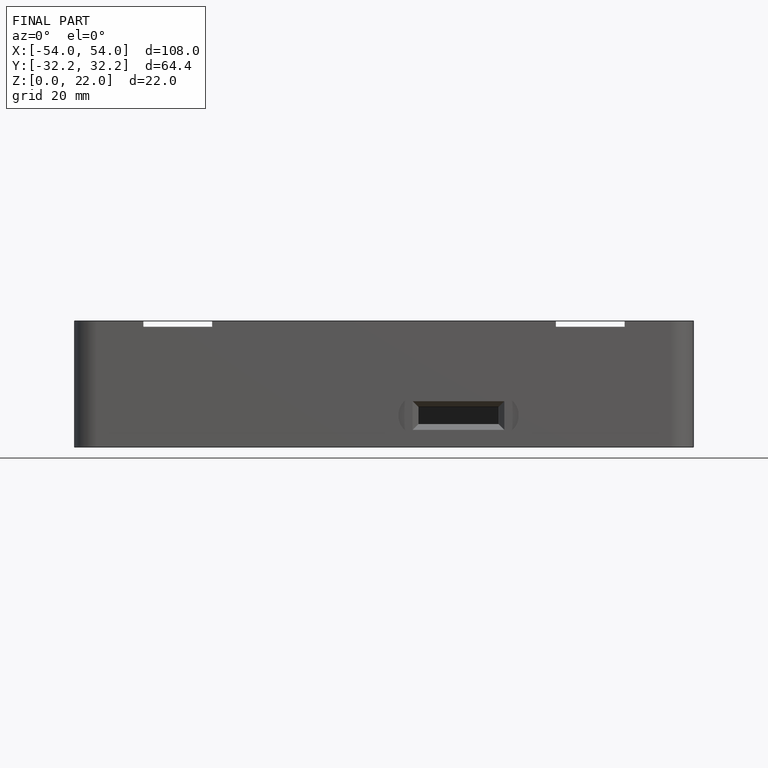
[diagram: finished part — front view with bounding-box wireframe]
